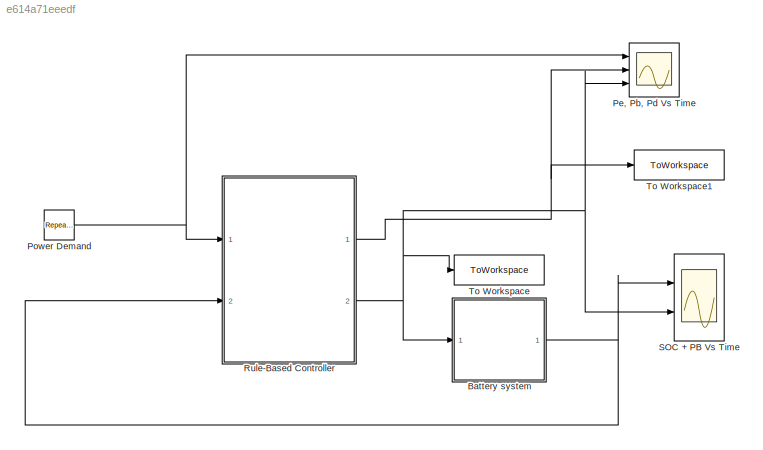
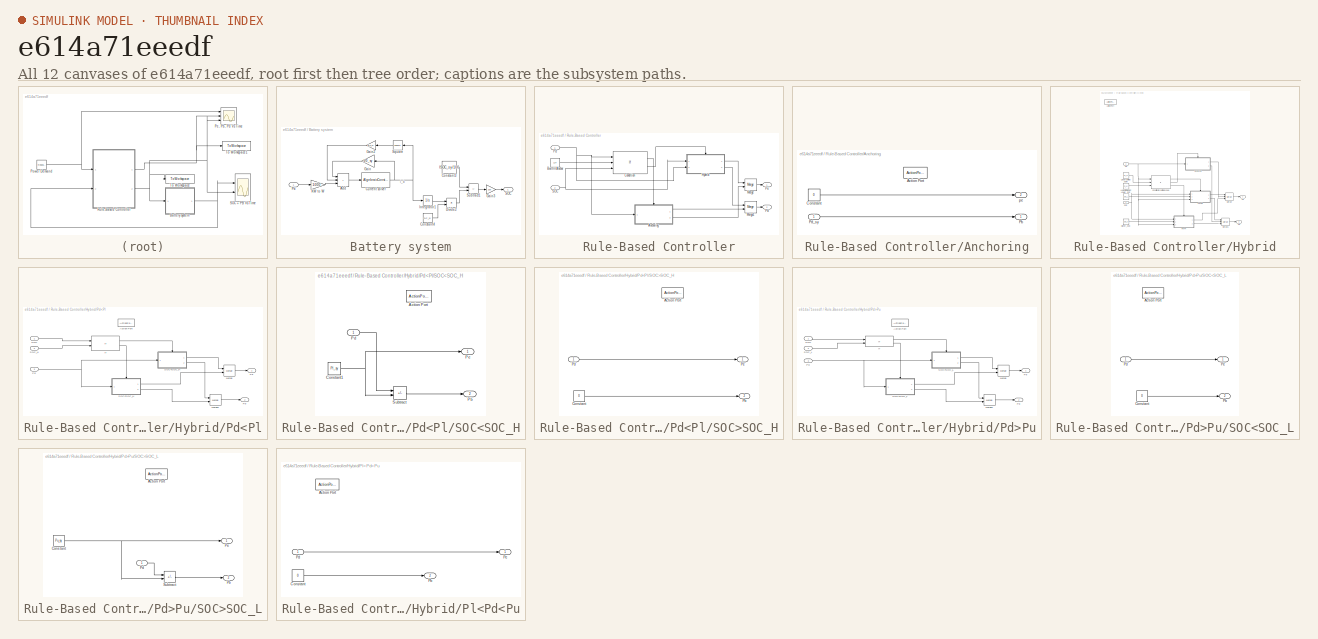
[diagram: thumbnail index - all 12 canvases of the model, root first then tree order]
MODEL slx_e614a71eeedf
KIND model
CONFIG AbsTol = auto
CONFIG EnableMultiTasking = off
CONFIG FixedStep = auto
CONFIG MaxStep = auto
CONFIG MinStep = auto
CONFIG RelTol = 1
CONFIG SampleTimeConstraint = Unconstrained
CONFIG SolverName = VariableStepAuto
CONFIG StartTime = 0.0
CONFIG StopTime = 274
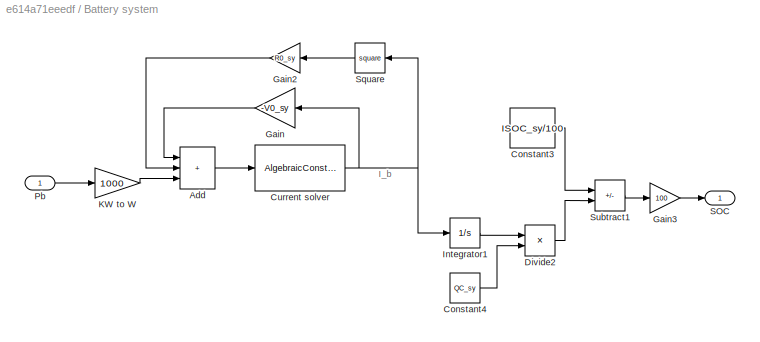
BLOCK [SubSystem] Battery system
  Ports = [1, 1]
  RequestExecContextInheritance = off
BLOCK [Sum] Battery system/Add
  IconShape = rectangular
  Inputs = +++
  Ports = [3, 1]
BLOCK [Constant] Battery system/Constant3
  Value = ISOC_sy/100
BLOCK [Constant] Battery system/Constant4
  Value = QC_sy
BLOCK [AlgebraicConstraint] Battery system/Current solver
  InitialGuess = -999999999999
BLOCK [Product] Battery system/Divide2
  Inputs = */
  Ports = [2, 1]
BLOCK [Gain] Battery system/Gain
  Gain = -V0_sy
  NameLocation = top
BLOCK [Gain] Battery system/Gain2
  Gain = R0_sy
  NameLocation = top
BLOCK [Gain] Battery system/Gain3
  Gain = 100
BLOCK [Integrator] Battery system/Integrator1
  Ports = [1, 1]
BLOCK [Gain] Battery system/KW to W
  Gain = 1000
BLOCK [Inport] Battery system/Pb
BLOCK [Outport] Battery system/SOC
BLOCK [Math] Battery system/Square
  NameLocation = top
  Operator = square
  Ports = [1, 1]
BLOCK [Sum] Battery system/Subtract1
  IconShape = rectangular
  Inputs = +-
  Ports = [2, 1]
BLOCK [Scope] Pe, Pb, Pd Vs Time 
  Floating = off
  NumInputPorts = 3
  Ports = [3]
  ScopeSpecificationString = Simulink.scopes.TimeScopeBlockCfg('CurrentConfiguration', extmgr.ConfigurationSet(extmgr.Configuration('Core','General UI',true,'FigureColor',[1 1 1]),extmgr.Configuration('Core','Source UI',true),extmgr.Configuration('Sources','WiredSimulink',true,'DataLoggingVariableName','ScopeData1'),extmgr.Configuration('Visuals','Time Domain',true,'SerializedDisplays',{struct('MinYLimReal','-66.25','MaxYLimR...<+2627ch>
BLOCK [Reference] Power Demand  REF=simulink/Sources/Repeating
Sequence
Interpolated
  Ports = [0, 1]
  SourceBlock = simulink/Sources/Repeating\nSequence\nInterpolated
  SourceProductBaseCode = SL
  SourceType = Repeating Sequence Interpolated
BLOCK [SubSystem] Rule-Based Controller
  Ports = [2, 2]
  RequestExecContextInheritance = off
BLOCK [SubSystem] Rule-Based Controller/Anchoring
  Ports = [1, 2, 0, 0, 0, 0, 0, 1]
  RequestExecContextInheritance = off
  TreatAsAtomicUnit = on
BLOCK [ActionPort] Rule-Based Controller/Anchoring/Action Port
  ActionPortLabel = if(((u1<=u2)&(u3>=20)))
BLOCK [Constant] Rule-Based Controller/Anchoring/Constant
  NameLocation = left
  Value = 0
BLOCK [Outport] Rule-Based Controller/Anchoring/Pb
BLOCK [Inport] Rule-Based Controller/Anchoring/Pd_sy
BLOCK [Outport] Rule-Based Controller/Anchoring/pe
  Port = 2
BLOCK [Constant] Rule-Based Controller/Berth n Anchor
  Value = 114
BLOCK [If] Rule-Based Controller/Condition
  IfExpression = ((u1<=u2)&(u3>=20))
  NumInputs = 3
  Ports = [3, 2]
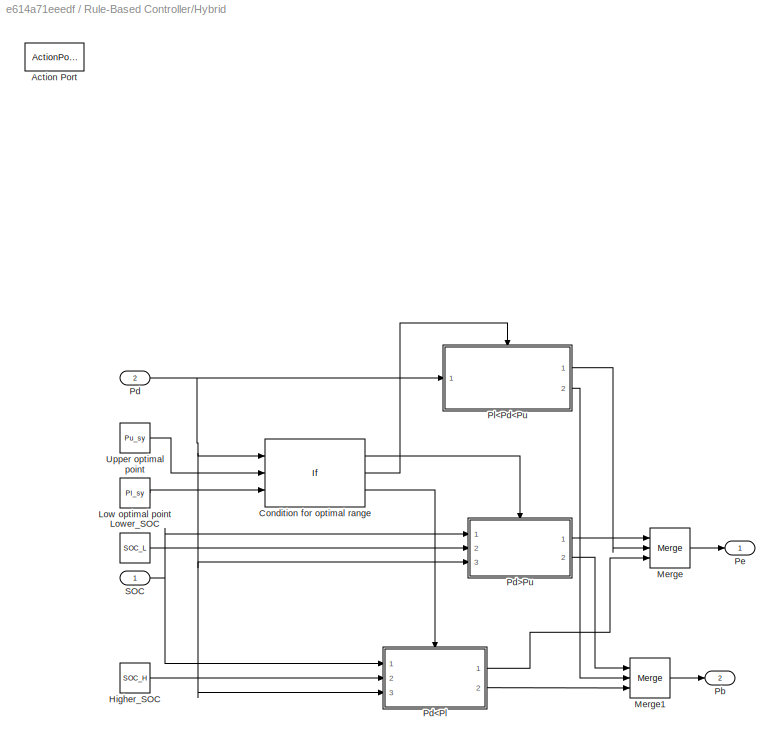
BLOCK [SubSystem] Rule-Based Controller/Hybrid
  Ports = [2, 2, 0, 0, 0, 0, 0, 1]
  RequestExecContextInheritance = off
  TreatAsAtomicUnit = on
BLOCK [Constant] Rule-Based Controller/Hybrid/   Low optimal point
  NameLocation = left
  Value = Pl_sy
BLOCK [Constant] Rule-Based Controller/Hybrid/  Upper optimal point 
  NameLocation = left
  Value = Pu_sy
BLOCK [ActionPort] Rule-Based Controller/Hybrid/Action Port
  ActionPortLabel = else
BLOCK [If] Rule-Based Controller/Hybrid/Condition for optimal range
  ElseIfExpressions = u1>u3
  IfExpression = u1 > u2
  NumInputs = 3
  Ports = [3, 3]
BLOCK [Constant] Rule-Based Controller/Hybrid/Higher_SOC
  NameLocation = left
  Value = SOC_H
BLOCK [Constant] Rule-Based Controller/Hybrid/Lower_SOC
  NameLocation = left
  Value = SOC_L
BLOCK [Merge] Rule-Based Controller/Hybrid/Merge
  Inputs = 3
  Ports = [3, 1]
BLOCK [Merge] Rule-Based Controller/Hybrid/Merge1
  Inputs = 3
  Ports = [3, 1]
BLOCK [Outport] Rule-Based Controller/Hybrid/Pb
  Port = 2
BLOCK [Inport] Rule-Based Controller/Hybrid/Pd
  Port = 2
BLOCK [SubSystem] Rule-Based Controller/Hybrid/Pd<Pl
  Ports = [3, 2, 0, 0, 0, 0, 0, 1]
  RequestExecContextInheritance = off
  TreatAsAtomicUnit = on
BLOCK [ActionPort] Rule-Based Controller/Hybrid/Pd<Pl/Action Port
  ActionPortLabel = else
BLOCK [If] Rule-Based Controller/Hybrid/Pd<Pl/If
  IfExpression = u1 >= u2
  NumInputs = 2
  Ports = [2, 2]
BLOCK [Merge] Rule-Based Controller/Hybrid/Pd<Pl/Merge
  Ports = [2, 1]
BLOCK [Merge] Rule-Based Controller/Hybrid/Pd<Pl/Merge1
  Ports = [2, 1]
BLOCK [Outport] Rule-Based Controller/Hybrid/Pd<Pl/Pb
  Port = 2
BLOCK [Inport] Rule-Based Controller/Hybrid/Pd<Pl/Pd
  Port = 3
BLOCK [Outport] Rule-Based Controller/Hybrid/Pd<Pl/Pe
BLOCK [Inport] Rule-Based Controller/Hybrid/Pd<Pl/SOC
BLOCK [SubSystem] Rule-Based Controller/Hybrid/Pd<Pl/SOC<SOC_H
  Ports = [1, 2, 0, 0, 0, 0, 0, 1]
  RequestExecContextInheritance = off
  TreatAsAtomicUnit = on
BLOCK [ActionPort] Rule-Based Controller/Hybrid/Pd<Pl/SOC<SOC_H/Action Port
  ActionPortLabel = else
BLOCK [Constant] Rule-Based Controller/Hybrid/Pd<Pl/SOC<SOC_H/Constant1
  Value = Pl_sy
BLOCK [Outport] Rule-Based Controller/Hybrid/Pd<Pl/SOC<SOC_H/Pb
  Port = 2
BLOCK [Inport] Rule-Based Controller/Hybrid/Pd<Pl/SOC<SOC_H/Pd
BLOCK [Outport] Rule-Based Controller/Hybrid/Pd<Pl/SOC<SOC_H/Pe
BLOCK [Sum] Rule-Based Controller/Hybrid/Pd<Pl/SOC<SOC_H/Subtract
  IconShape = rectangular
  Inputs = +-
  Ports = [2, 1]
BLOCK [SubSystem] Rule-Based Controller/Hybrid/Pd<Pl/SOC>SOC_H
  Ports = [1, 2, 0, 0, 0, 0, 0, 1]
  RequestExecContextInheritance = off
  TreatAsAtomicUnit = on
BLOCK [ActionPort] Rule-Based Controller/Hybrid/Pd<Pl/SOC>SOC_H/Action Port
  ActionPortLabel = if(u1 >= u2)
BLOCK [Constant] Rule-Based Controller/Hybrid/Pd<Pl/SOC>SOC_H/Constant
  Value = 0
BLOCK [Outport] Rule-Based Controller/Hybrid/Pd<Pl/SOC>SOC_H/Pb
  Port = 2
BLOCK [Inport] Rule-Based Controller/Hybrid/Pd<Pl/SOC>SOC_H/Pd
BLOCK [Outport] Rule-Based Controller/Hybrid/Pd<Pl/SOC>SOC_H/Pe
BLOCK [Inport] Rule-Based Controller/Hybrid/Pd<Pl/SOC_H
  Port = 2
BLOCK [SubSystem] Rule-Based Controller/Hybrid/Pd>Pu
  Ports = [3, 2, 0, 0, 0, 0, 0, 1]
  RequestExecContextInheritance = off
  TreatAsAtomicUnit = on
BLOCK [ActionPort] Rule-Based Controller/Hybrid/Pd>Pu/Action Port
  ActionPortLabel = if(u1 > u2)
BLOCK [If] Rule-Based Controller/Hybrid/Pd>Pu/If
  IfExpression = u1 > u2
  NumInputs = 2
  Ports = [2, 2]
BLOCK [Merge] Rule-Based Controller/Hybrid/Pd>Pu/Merge
  Ports = [2, 1]
BLOCK [Merge] Rule-Based Controller/Hybrid/Pd>Pu/Merge1
  Ports = [2, 1]
BLOCK [Outport] Rule-Based Controller/Hybrid/Pd>Pu/Pb
  Port = 2
BLOCK [Inport] Rule-Based Controller/Hybrid/Pd>Pu/Pd
  Port = 3
BLOCK [Outport] Rule-Based Controller/Hybrid/Pd>Pu/Pe
BLOCK [Inport] Rule-Based Controller/Hybrid/Pd>Pu/SOC
BLOCK [SubSystem] Rule-Based Controller/Hybrid/Pd>Pu/SOC<SOC_L
  Ports = [1, 2, 0, 0, 0, 0, 0, 1]
  RequestExecContextInheritance = off
  TreatAsAtomicUnit = on
BLOCK [ActionPort] Rule-Based Controller/Hybrid/Pd>Pu/SOC<SOC_L/Action Port
  ActionPortLabel = else
BLOCK [Constant] Rule-Based Controller/Hybrid/Pd>Pu/SOC<SOC_L/Constant
  Value = 0
BLOCK [Outport] Rule-Based Controller/Hybrid/Pd>Pu/SOC<SOC_L/Pb
  Port = 2
BLOCK [Inport] Rule-Based Controller/Hybrid/Pd>Pu/SOC<SOC_L/Pd
BLOCK [Outport] Rule-Based Controller/Hybrid/Pd>Pu/SOC<SOC_L/Pe
BLOCK [SubSystem] Rule-Based Controller/Hybrid/Pd>Pu/SOC>SOC_L
  Ports = [1, 2, 0, 0, 0, 0, 0, 1]
  RequestExecContextInheritance = off
  TreatAsAtomicUnit = on
BLOCK [ActionPort] Rule-Based Controller/Hybrid/Pd>Pu/SOC>SOC_L/Action Port
  ActionPortLabel = if(u1 > u2)
BLOCK [Constant] Rule-Based Controller/Hybrid/Pd>Pu/SOC>SOC_L/Constant
  Value = Pu_sy
BLOCK [Outport] Rule-Based Controller/Hybrid/Pd>Pu/SOC>SOC_L/Pb
  Port = 2
BLOCK [Inport] Rule-Based Controller/Hybrid/Pd>Pu/SOC>SOC_L/Pd
BLOCK [Outport] Rule-Based Controller/Hybrid/Pd>Pu/SOC>SOC_L/Pe
BLOCK [Sum] Rule-Based Controller/Hybrid/Pd>Pu/SOC>SOC_L/Subtract
  IconShape = rectangular
  Inputs = +-
  Ports = [2, 1]
BLOCK [Inport] Rule-Based Controller/Hybrid/Pd>Pu/SOC_L
  Port = 2
BLOCK [Outport] Rule-Based Controller/Hybrid/Pe
BLOCK [SubSystem] Rule-Based Controller/Hybrid/Pl<Pd<Pu
  Ports = [1, 2, 0, 0, 0, 0, 0, 1]
  RequestExecContextInheritance = off
  TreatAsAtomicUnit = on
BLOCK [ActionPort] Rule-Based Controller/Hybrid/Pl<Pd<Pu/Action Port
  ActionPortLabel = elseif(u1>u3)
BLOCK [Constant] Rule-Based Controller/Hybrid/Pl<Pd<Pu/Constant
  Value = 0
BLOCK [Outport] Rule-Based Controller/Hybrid/Pl<Pd<Pu/Pb
  Port = 2
BLOCK [Inport] Rule-Based Controller/Hybrid/Pl<Pd<Pu/Pd
BLOCK [Outport] Rule-Based Controller/Hybrid/Pl<Pd<Pu/Pe
BLOCK [Inport] Rule-Based Controller/Hybrid/SOC
BLOCK [Merge] Rule-Based Controller/Merge
  Ports = [2, 1]
BLOCK [Merge] Rule-Based Controller/Merge1
  Ports = [2, 1]
BLOCK [Outport] Rule-Based Controller/Pb
  Port = 2
BLOCK [Inport] Rule-Based Controller/Pd
BLOCK [Outport] Rule-Based Controller/Pe
BLOCK [Inport] Rule-Based Controller/SOC
  Port = 2
BLOCK [Scope] SOC + PB Vs Time
  Floating = off
  NumInputPorts = 2
  Ports = [2]
  ScopeSpecificationString = Simulink.scopes.TimeScopeBlockCfg('CurrentConfiguration', extmgr.ConfigurationSet(extmgr.Configuration('Core','General UI',true,'FigureColor',[1 1 1]),extmgr.Configuration('Core','Source UI',true),extmgr.Configuration('Sources','WiredSimulink',true),extmgr.Configuration('Visuals','Time Domain',true,'SerializedDisplays',{struct('MinYLimReal','12.5','MaxYLimReal','87.5','YLabelReal','','MinYLimMag',...<+3415ch>
BLOCK [ToWorkspace] To Workspace
  FixptAsFi = on
  MaxDataPoints = inf
  Ports = [1]
  SampleTime = -1
  VariableName = P_b
BLOCK [ToWorkspace] To Workspace1
  FixptAsFi = on
  MaxDataPoints = inf
  Ports = [1]
  SampleTime = -1
  VariableName = P_e
ANNOTATION Battery system: I_b
LINE Battery system/Add:1 -> Battery system/Current solver:1
LINE Battery system/Constant3:1 -> Battery system/Subtract1:1
LINE Battery system/Constant4:1 -> Battery system/Divide2:2
NET Battery system/Current solver:1 -> Battery system/Gain:1, Battery system/Integrator1:1, Battery system/Square:1
LINE Battery system/Divide2:1 -> Battery system/Subtract1:2
LINE Battery system/Gain2:1 -> Battery system/Add:2
LINE Battery system/Gain3:1 -> Battery system/SOC:1
LINE Battery system/Gain:1 -> Battery system/Add:1
LINE Battery system/Integrator1:1 -> Battery system/Divide2:1
LINE Battery system/KW to W:1 -> Battery system/Add:3
LINE Battery system/Pb:1 -> Battery system/KW to W:1
LINE Battery system/Square:1 -> Battery system/Gain2:1
LINE Battery system/Subtract1:1 -> Battery system/Gain3:1
NET Battery system:1 -> Rule-Based Controller:2, SOC + PB Vs Time:1
NET Power Demand:1 -> Pe, Pb, Pd Vs Time :1, Rule-Based Controller:1
LINE Rule-Based Controller/Anchoring/Constant:1 -> Rule-Based Controller/Anchoring/pe:1
LINE Rule-Based Controller/Anchoring/Pd_sy:1 -> Rule-Based Controller/Anchoring/Pb:1
LINE Rule-Based Controller/Anchoring:1 -> Rule-Based Controller/Merge1:2
LINE Rule-Based Controller/Anchoring:2 -> Rule-Based Controller/Merge:2
LINE Rule-Based Controller/Berth n Anchor:1 -> Rule-Based Controller/Condition:2
LINE Rule-Based Controller/Condition:1 -> Rule-Based Controller/Anchoring:ifaction
LINE Rule-Based Controller/Condition:2 -> Rule-Based Controller/Hybrid:ifaction
LINE Rule-Based Controller/Hybrid/   Low optimal point:1 -> Rule-Based Controller/Hybrid/Condition for optimal range:3
LINE Rule-Based Controller/Hybrid/  Upper optimal point :1 -> Rule-Based Controller/Hybrid/Condition for optimal range:2
LINE Rule-Based Controller/Hybrid/Condition for optimal range:1 -> Rule-Based Controller/Hybrid/Pd>Pu:ifaction
LINE Rule-Based Controller/Hybrid/Condition for optimal range:2 -> Rule-Based Controller/Hybrid/Pl<Pd<Pu:ifaction
LINE Rule-Based Controller/Hybrid/Condition for optimal range:3 -> Rule-Based Controller/Hybrid/Pd<Pl:ifaction
LINE Rule-Based Controller/Hybrid/Higher_SOC:1 -> Rule-Based Controller/Hybrid/Pd<Pl:2
LINE Rule-Based Controller/Hybrid/Lower_SOC:1 -> Rule-Based Controller/Hybrid/Pd>Pu:2
LINE Rule-Based Controller/Hybrid/Merge1:1 -> Rule-Based Controller/Hybrid/Pb:1
LINE Rule-Based Controller/Hybrid/Merge:1 -> Rule-Based Controller/Hybrid/Pe:1
NET Rule-Based Controller/Hybrid/Pd:1 -> Rule-Based Controller/Hybrid/Condition for optimal range:1, Rule-Based Controller/Hybrid/Pd<Pl:3, Rule-Based Controller/Hybrid/Pd>Pu:3, Rule-Based Controller/Hybrid/Pl<Pd<Pu:1
LINE Rule-Based Controller/Hybrid/Pd<Pl/If:1 -> Rule-Based Controller/Hybrid/Pd<Pl/SOC>SOC_H:ifaction
LINE Rule-Based Controller/Hybrid/Pd<Pl/If:2 -> Rule-Based Controller/Hybrid/Pd<Pl/SOC<SOC_H:ifaction
LINE Rule-Based Controller/Hybrid/Pd<Pl/Merge1:1 -> Rule-Based Controller/Hybrid/Pd<Pl/Pb:1
LINE Rule-Based Controller/Hybrid/Pd<Pl/Merge:1 -> Rule-Based Controller/Hybrid/Pd<Pl/Pe:1
NET Rule-Based Controller/Hybrid/Pd<Pl/Pd:1 -> Rule-Based Controller/Hybrid/Pd<Pl/SOC<SOC_H:1, Rule-Based Controller/Hybrid/Pd<Pl/SOC>SOC_H:1
LINE Rule-Based Controller/Hybrid/Pd<Pl/SOC:1 -> Rule-Based Controller/Hybrid/Pd<Pl/If:1
NET Rule-Based Controller/Hybrid/Pd<Pl/SOC<SOC_H/Constant1:1 -> Rule-Based Controller/Hybrid/Pd<Pl/SOC<SOC_H/Pe:1, Rule-Based Controller/Hybrid/Pd<Pl/SOC<SOC_H/Subtract:2
LINE Rule-Based Controller/Hybrid/Pd<Pl/SOC<SOC_H/Pd:1 -> Rule-Based Controller/Hybrid/Pd<Pl/SOC<SOC_H/Subtract:1
LINE Rule-Based Controller/Hybrid/Pd<Pl/SOC<SOC_H/Subtract:1 -> Rule-Based Controller/Hybrid/Pd<Pl/SOC<SOC_H/Pb:1
LINE Rule-Based Controller/Hybrid/Pd<Pl/SOC<SOC_H:1 -> Rule-Based Controller/Hybrid/Pd<Pl/Merge:2
LINE Rule-Based Controller/Hybrid/Pd<Pl/SOC<SOC_H:2 -> Rule-Based Controller/Hybrid/Pd<Pl/Merge1:2
LINE Rule-Based Controller/Hybrid/Pd<Pl/SOC>SOC_H/Constant:1 -> Rule-Based Controller/Hybrid/Pd<Pl/SOC>SOC_H/Pb:1
LINE Rule-Based Controller/Hybrid/Pd<Pl/SOC>SOC_H/Pd:1 -> Rule-Based Controller/Hybrid/Pd<Pl/SOC>SOC_H/Pe:1
LINE Rule-Based Controller/Hybrid/Pd<Pl/SOC>SOC_H:1 -> Rule-Based Controller/Hybrid/Pd<Pl/Merge:1
LINE Rule-Based Controller/Hybrid/Pd<Pl/SOC>SOC_H:2 -> Rule-Based Controller/Hybrid/Pd<Pl/Merge1:1
LINE Rule-Based Controller/Hybrid/Pd<Pl/SOC_H:1 -> Rule-Based Controller/Hybrid/Pd<Pl/If:2
LINE Rule-Based Controller/Hybrid/Pd<Pl:1 -> Rule-Based Controller/Hybrid/Merge:3
LINE Rule-Based Controller/Hybrid/Pd<Pl:2 -> Rule-Based Controller/Hybrid/Merge1:3
LINE Rule-Based Controller/Hybrid/Pd>Pu/If:1 -> Rule-Based Controller/Hybrid/Pd>Pu/SOC>SOC_L:ifaction
LINE Rule-Based Controller/Hybrid/Pd>Pu/If:2 -> Rule-Based Controller/Hybrid/Pd>Pu/SOC<SOC_L:ifaction
LINE Rule-Based Controller/Hybrid/Pd>Pu/Merge1:1 -> Rule-Based Controller/Hybrid/Pd>Pu/Pb:1
LINE Rule-Based Controller/Hybrid/Pd>Pu/Merge:1 -> Rule-Based Controller/Hybrid/Pd>Pu/Pe:1
NET Rule-Based Controller/Hybrid/Pd>Pu/Pd:1 -> Rule-Based Controller/Hybrid/Pd>Pu/SOC<SOC_L:1, Rule-Based Controller/Hybrid/Pd>Pu/SOC>SOC_L:1
LINE Rule-Based Controller/Hybrid/Pd>Pu/SOC:1 -> Rule-Based Controller/Hybrid/Pd>Pu/If:1
LINE Rule-Based Controller/Hybrid/Pd>Pu/SOC<SOC_L/Constant:1 -> Rule-Based Controller/Hybrid/Pd>Pu/SOC<SOC_L/Pb:1
LINE Rule-Based Controller/Hybrid/Pd>Pu/SOC<SOC_L/Pd:1 -> Rule-Based Controller/Hybrid/Pd>Pu/SOC<SOC_L/Pe:1
LINE Rule-Based Controller/Hybrid/Pd>Pu/SOC<SOC_L:1 -> Rule-Based Controller/Hybrid/Pd>Pu/Merge:2
LINE Rule-Based Controller/Hybrid/Pd>Pu/SOC<SOC_L:2 -> Rule-Based Controller/Hybrid/Pd>Pu/Merge1:2
NET Rule-Based Controller/Hybrid/Pd>Pu/SOC>SOC_L/Constant:1 -> Rule-Based Controller/Hybrid/Pd>Pu/SOC>SOC_L/Pe:1, Rule-Based Controller/Hybrid/Pd>Pu/SOC>SOC_L/Subtract:2
LINE Rule-Based Controller/Hybrid/Pd>Pu/SOC>SOC_L/Pd:1 -> Rule-Based Controller/Hybrid/Pd>Pu/SOC>SOC_L/Subtract:1
LINE Rule-Based Controller/Hybrid/Pd>Pu/SOC>SOC_L/Subtract:1 -> Rule-Based Controller/Hybrid/Pd>Pu/SOC>SOC_L/Pb:1
LINE Rule-Based Controller/Hybrid/Pd>Pu/SOC>SOC_L:1 -> Rule-Based Controller/Hybrid/Pd>Pu/Merge:1
LINE Rule-Based Controller/Hybrid/Pd>Pu/SOC>SOC_L:2 -> Rule-Based Controller/Hybrid/Pd>Pu/Merge1:1
LINE Rule-Based Controller/Hybrid/Pd>Pu/SOC_L:1 -> Rule-Based Controller/Hybrid/Pd>Pu/If:2
LINE Rule-Based Controller/Hybrid/Pd>Pu:1 -> Rule-Based Controller/Hybrid/Merge:1
LINE Rule-Based Controller/Hybrid/Pd>Pu:2 -> Rule-Based Controller/Hybrid/Merge1:1
LINE Rule-Based Controller/Hybrid/Pl<Pd<Pu/Constant:1 -> Rule-Based Controller/Hybrid/Pl<Pd<Pu/Pb:1
LINE Rule-Based Controller/Hybrid/Pl<Pd<Pu/Pd:1 -> Rule-Based Controller/Hybrid/Pl<Pd<Pu/Pe:1
LINE Rule-Based Controller/Hybrid/Pl<Pd<Pu:1 -> Rule-Based Controller/Hybrid/Merge:2
LINE Rule-Based Controller/Hybrid/Pl<Pd<Pu:2 -> Rule-Based Controller/Hybrid/Merge1:2
NET Rule-Based Controller/Hybrid/SOC:1 -> Rule-Based Controller/Hybrid/Pd<Pl:1, Rule-Based Controller/Hybrid/Pd>Pu:1
LINE Rule-Based Controller/Hybrid:1 -> Rule-Based Controller/Merge:1
LINE Rule-Based Controller/Hybrid:2 -> Rule-Based Controller/Merge1:1
LINE Rule-Based Controller/Merge1:1 -> Rule-Based Controller/Pb:1
LINE Rule-Based Controller/Merge:1 -> Rule-Based Controller/Pe:1
NET Rule-Based Controller/Pd:1 -> Rule-Based Controller/Anchoring:1, Rule-Based Controller/Condition:1, Rule-Based Controller/Hybrid:2
NET Rule-Based Controller/SOC:1 -> Rule-Based Controller/Condition:3, Rule-Based Controller/Hybrid:1
NET Rule-Based Controller:1 -> Pe, Pb, Pd Vs Time :2, To Workspace1:1
NET Rule-Based Controller:2 -> Battery system:1, Pe, Pb, Pd Vs Time :3, SOC + PB Vs Time:2, To Workspace:1
note: NET lines group one-source signal fan-out (src -> all destinations, sorted); 1:1 wires keep LINE
